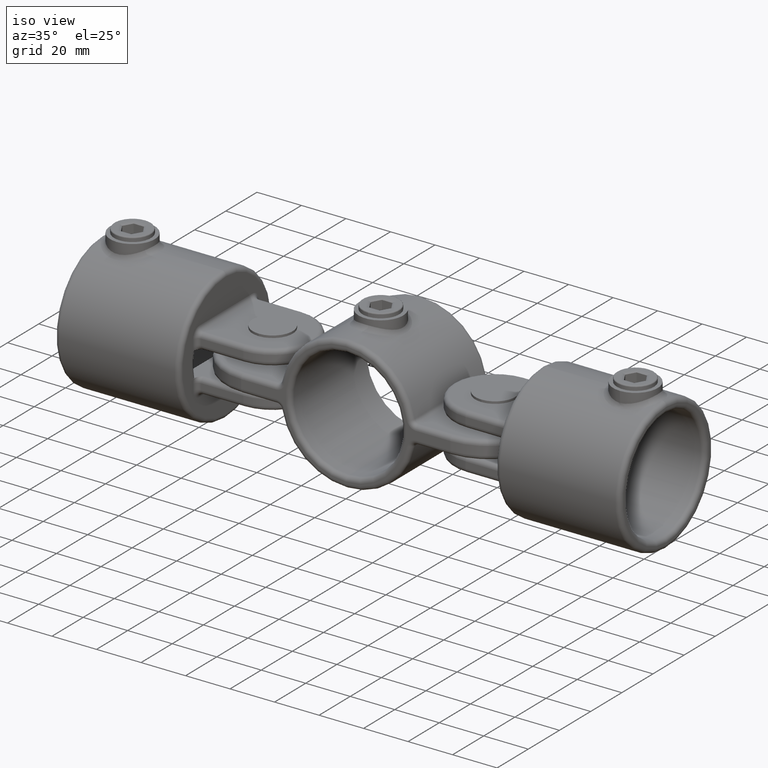
[diagram: clean part render]
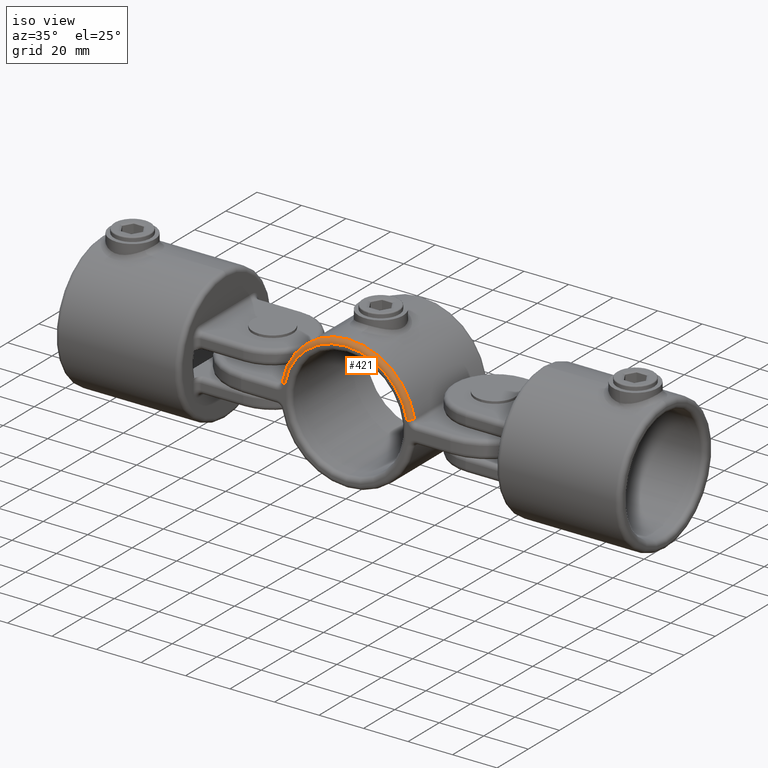
[diagram: same view with one face highlighted and labeled with its STEP entity id]
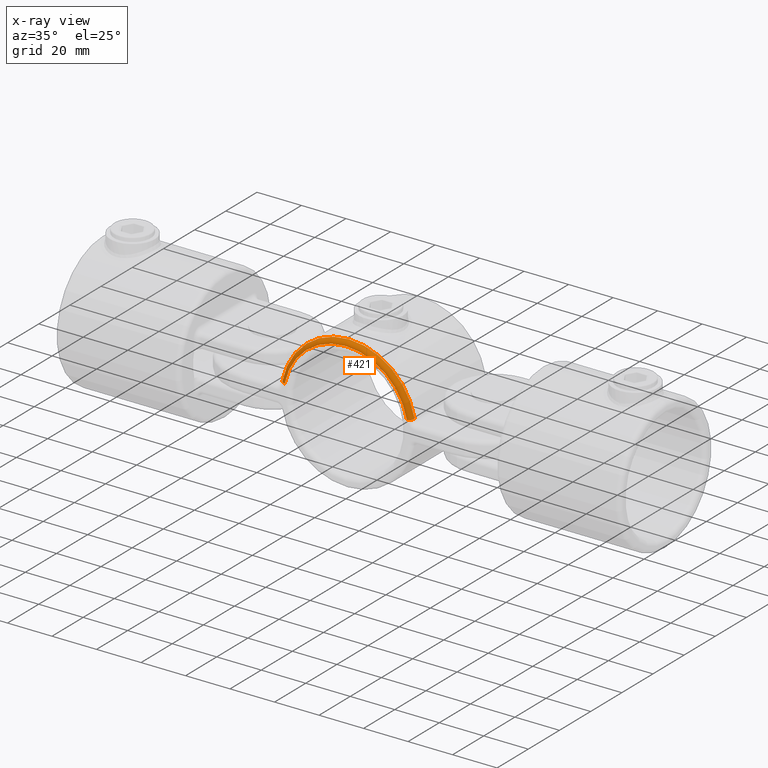
[diagram: x-ray of the same camera — body ghosted, the highlighted face saturated]
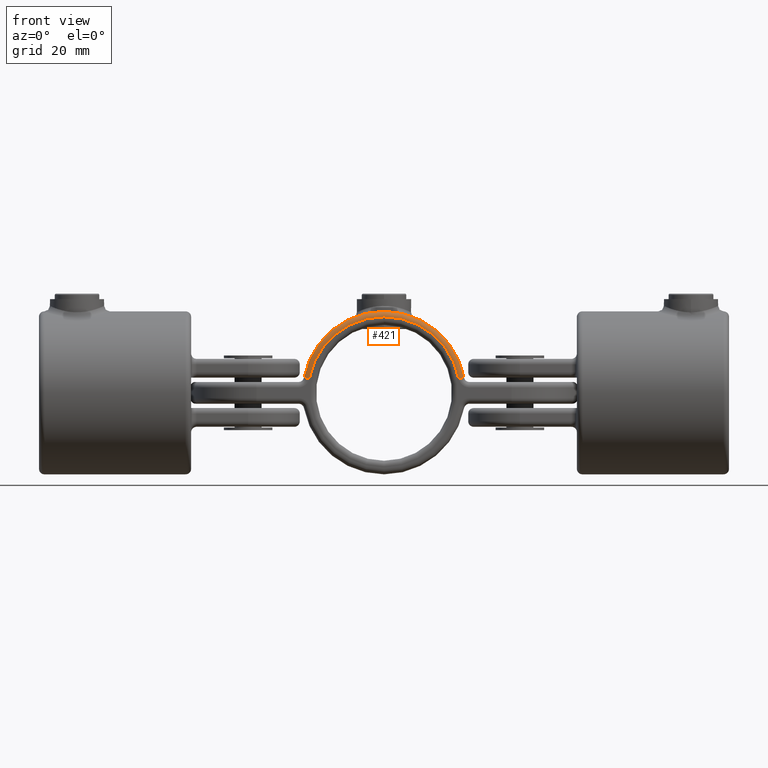
[diagram: same view with one face highlighted and labeled with its STEP entity id]
A machine part, iso view. The second image highlights one B-rep face of the part: STEP entity #421.
The next image is the same camera in x-ray: the body ghosted, the highlighted face saturated — about 0% of this face is hidden behind the body in this view.
A second angle (front view) of the same face is appended — the face is thin or edge-on in the first view.
In plain terms, the highlighted toroidal blend (fillet) surface has major radius 28 mm and minor (blend) radius 2 mm.
Its self-contained STEP definition (entity closure, byte-faithful):
#110 = VERTEX_POINT ( 'NONE', #3453 ) ;
#210 = DIRECTION ( 'NONE',  ( 0.000000000000000000, 0.000000000000000000, 1.000000000000000000 ) ) ;
#421 = ADVANCED_FACE ( 'NONE', ( #3148 ), #1366, .T. ) ;
#475 = CIRCLE ( 'NONE', #3512, 27.99999999999999645 ) ;
#514 = CARTESIAN_POINT ( 'NONE',  ( 29.46793808531570846, 2.000000000000001776, 5.625000000000000000 ) ) ;
#789 = EDGE_CURVE ( 'NONE', #110, #5279, #2264, .T. ) ;
#810 = ORIENTED_EDGE ( 'NONE', *, *, #789, .T. ) ;
#1121 = DIRECTION ( 'NONE',  ( 0.000000000000000000, 1.000000000000000000, 0.000000000000000000 ) ) ;
#1162 = DIRECTION ( 'NONE',  ( -0.1875000000000002220, -1.007287147979164754E-16, 0.9822646028438568599 ) ) ;
#1258 = DIRECTION ( 'NONE',  ( -0.1875000000000003608, -0.000000000000000000, -0.9822646028438569710 ) ) ;
#1366 = TOROIDAL_SURFACE ( 'NONE', #2379, 27.99999999999999645, 2.000000000000000000 ) ;
#1514 = VERTEX_POINT ( 'NONE', #5809 ) ;
#1533 = ORIENTED_EDGE ( 'NONE', *, *, #4232, .F. ) ;
#1611 = DIRECTION ( 'NONE',  ( -0.000000000000000000, -1.000000000000000000, -0.000000000000000000 ) ) ;
#1811 = CARTESIAN_POINT ( 'NONE',  ( 0.000000000000000000, 2.000000000000001776, 0.000000000000000000 ) ) ;
#2264 = CIRCLE ( 'NONE', #5868, 1.999999999999999334 ) ;
#2379 = AXIS2_PLACEMENT_3D ( 'NONE', #4040, #1121, #4412 ) ;
#2995 = AXIS2_PLACEMENT_3D ( 'NONE', #3676, #1258, #6116 ) ;
#3148 = FACE_OUTER_BOUND ( 'NONE', #6160, .T. ) ;
#3225 = CIRCLE ( 'NONE', #4024, 30.00000000000000000 ) ;
#3453 = CARTESIAN_POINT ( 'NONE',  ( 27.50340887962799030, 0.000000000000000000, 5.249999999999998224 ) ) ;
#3512 = AXIS2_PLACEMENT_3D ( 'NONE', #5098, #1611, #210 ) ;
#3607 = EDGE_CURVE ( 'NONE', #4980, #1514, #4568, .T. ) ;
#3676 = CARTESIAN_POINT ( 'NONE',  ( -27.50340887962799030, 2.000000000000000000, 5.249999999999998224 ) ) ;
#4012 = CARTESIAN_POINT ( 'NONE',  ( 27.50340887962799385, 2.000000000000001776, 5.249999999999999112 ) ) ;
#4024 = AXIS2_PLACEMENT_3D ( 'NONE', #1811, #4196, #6145 ) ;
#4027 = ORIENTED_EDGE ( 'NONE', *, *, #3607, .F. ) ;
#4040 = CARTESIAN_POINT ( 'NONE',  ( 0.000000000000000000, 2.000000000000001776, 0.000000000000000000 ) ) ;
#4196 = DIRECTION ( 'NONE',  ( 0.000000000000000000, 1.000000000000000000, 0.000000000000000000 ) ) ;
#4232 = EDGE_CURVE ( 'NONE', #1514, #5279, #3225, .T. ) ;
#4412 = DIRECTION ( 'NONE',  ( 0.000000000000000000, 0.000000000000000000, 1.000000000000000000 ) ) ;
#4568 = CIRCLE ( 'NONE', #2995, 1.999999999999999334 ) ;
#4879 = EDGE_CURVE ( 'NONE', #110, #4980, #475, .T. ) ;
#4903 = ORIENTED_EDGE ( 'NONE', *, *, #4879, .F. ) ;
#4980 = VERTEX_POINT ( 'NONE', #5542 ) ;
#5098 = CARTESIAN_POINT ( 'NONE',  ( 0.000000000000000000, 0.000000000000000000, 0.000000000000000000 ) ) ;
#5279 = VERTEX_POINT ( 'NONE', #514 ) ;
#5416 = DIRECTION ( 'NONE',  ( -0.9822646028438568599, 0.000000000000000000, -0.1875000000000002220 ) ) ;
#5542 = CARTESIAN_POINT ( 'NONE',  ( -27.50340887962799030, 0.000000000000000000, 5.249999999999998224 ) ) ;
#5809 = CARTESIAN_POINT ( 'NONE',  ( -29.46793808531570846, 2.000000000000001776, 5.625000000000000000 ) ) ;
#5868 = AXIS2_PLACEMENT_3D ( 'NONE', #4012, #1162, #5416 ) ;
#6116 = DIRECTION ( 'NONE',  ( -0.9822646028438568599, 0.000000000000000000, 0.1875000000000002220 ) ) ;
#6145 = DIRECTION ( 'NONE',  ( 0.000000000000000000, 0.000000000000000000, 1.000000000000000000 ) ) ;
#6160 = EDGE_LOOP ( 'NONE', ( #810, #1533, #4027, #4903 ) ) ;